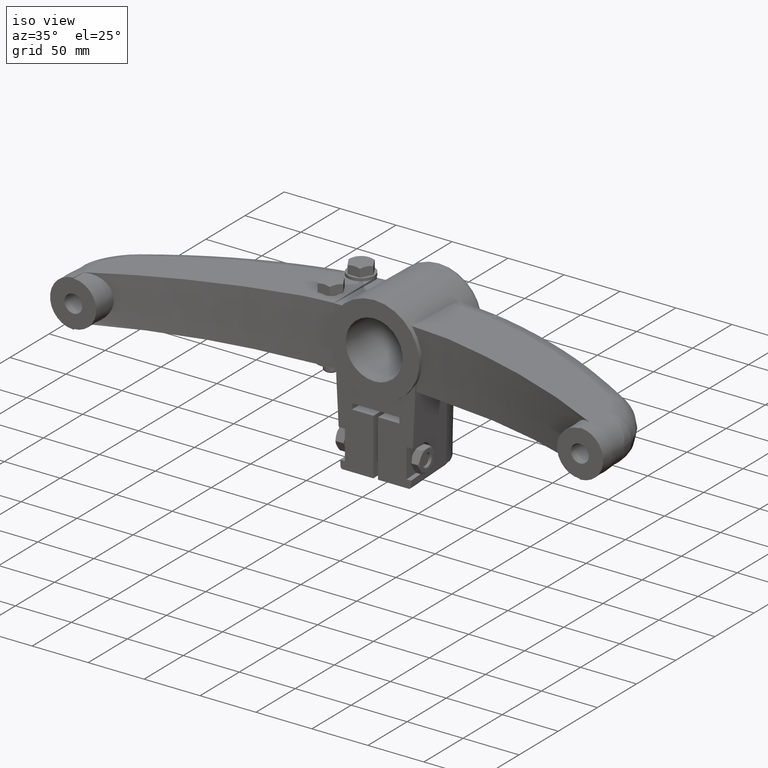
[diagram: clean part render]
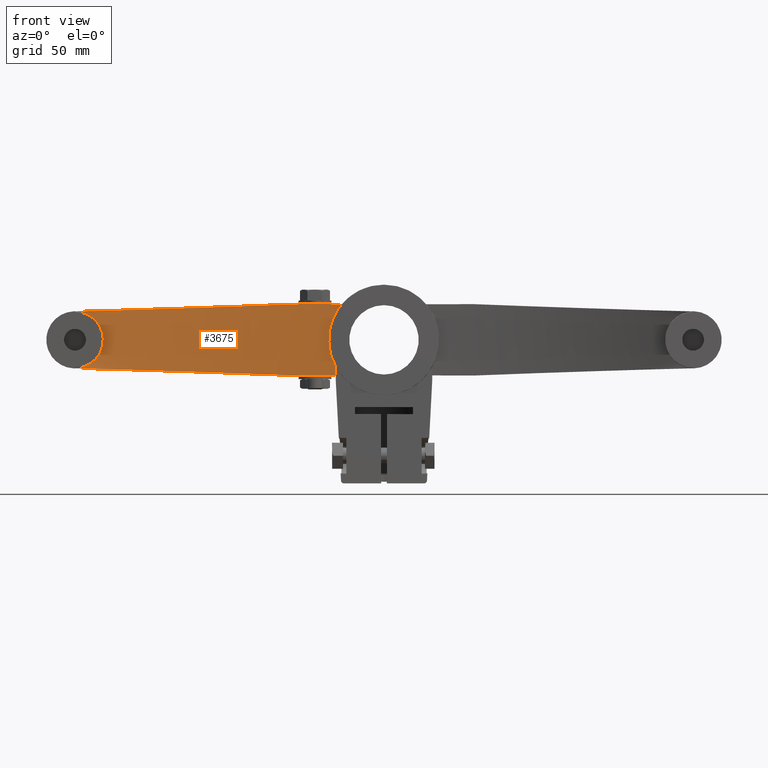
[diagram: tour spotlight — one face highlighted and labeled with its STEP entity id]
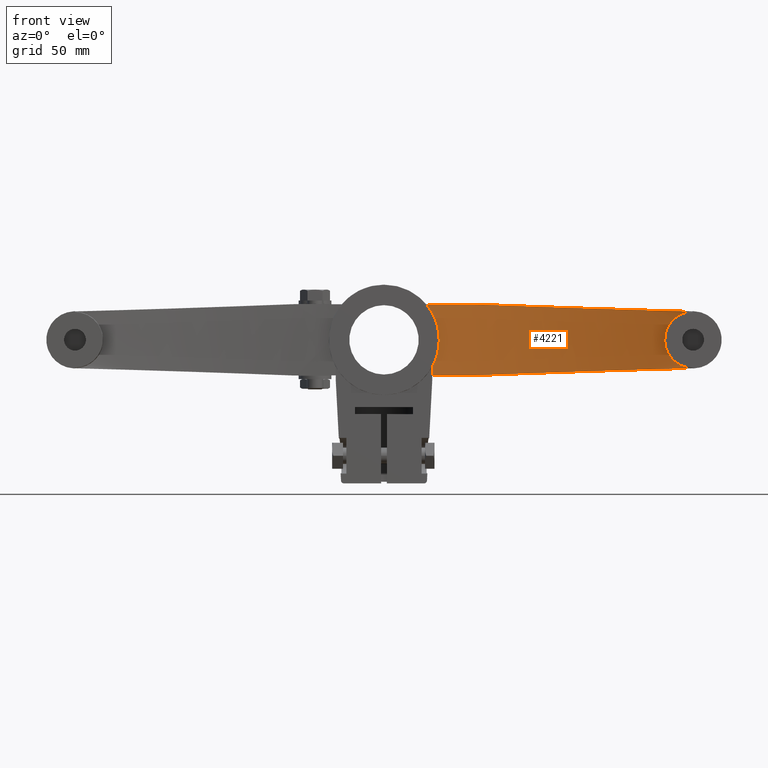
[diagram: tour spotlight — one face highlighted and labeled with its STEP entity id]
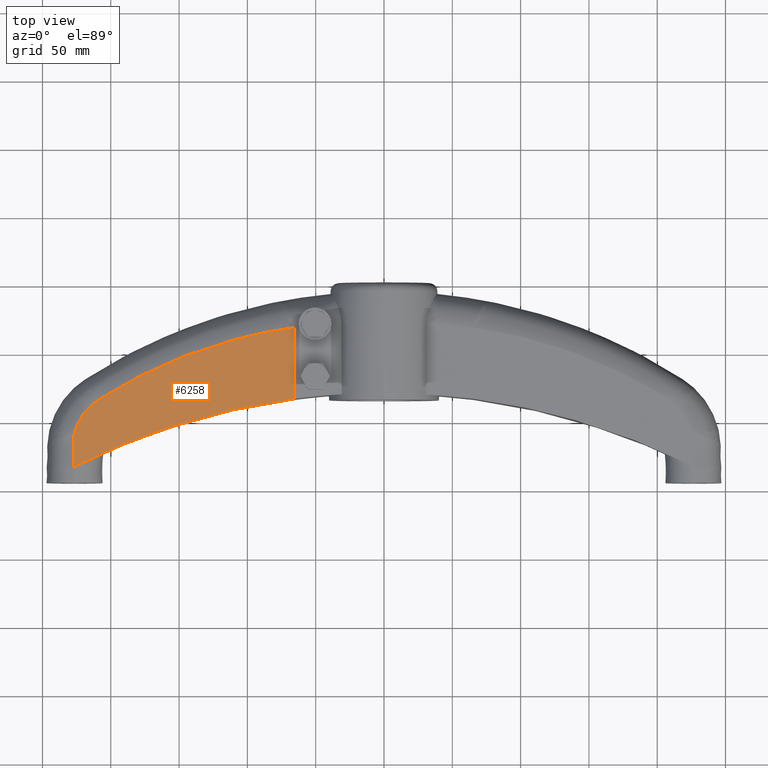
[diagram: tour spotlight — one face highlighted and labeled with its STEP entity id]
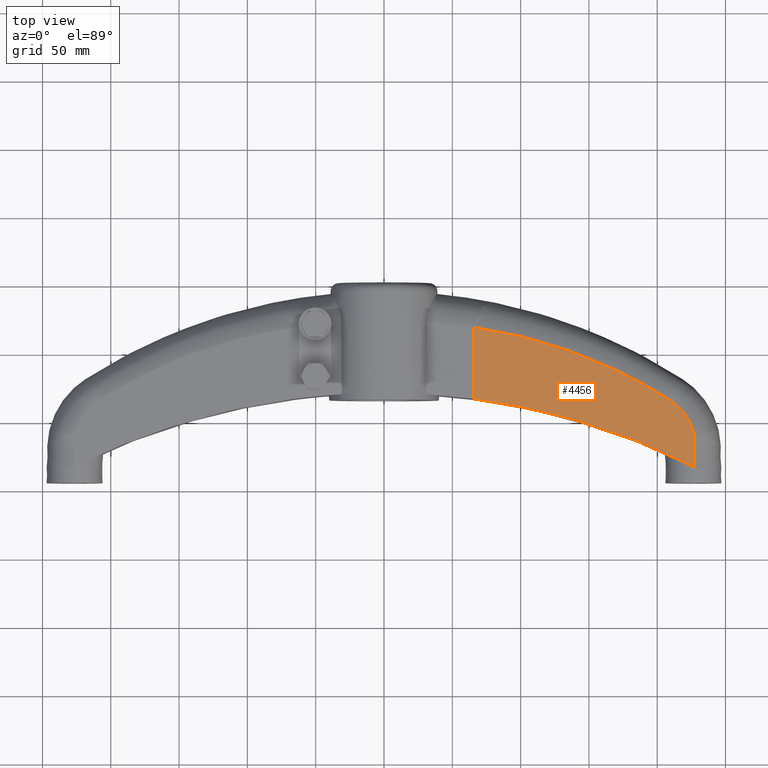
[diagram: tour spotlight — one face highlighted and labeled with its STEP entity id]
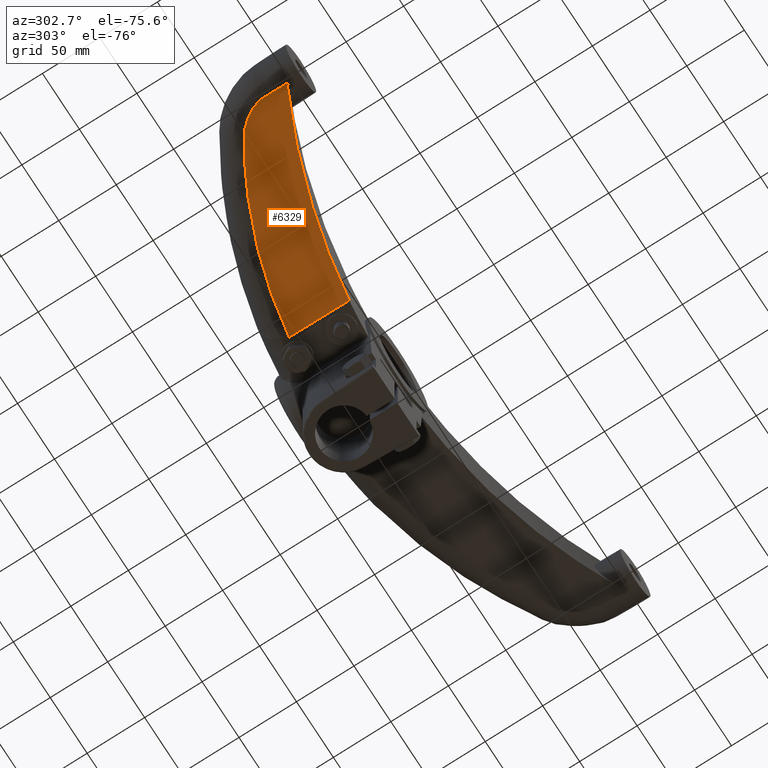
[diagram: tour spotlight — one face highlighted and labeled with its STEP entity id]
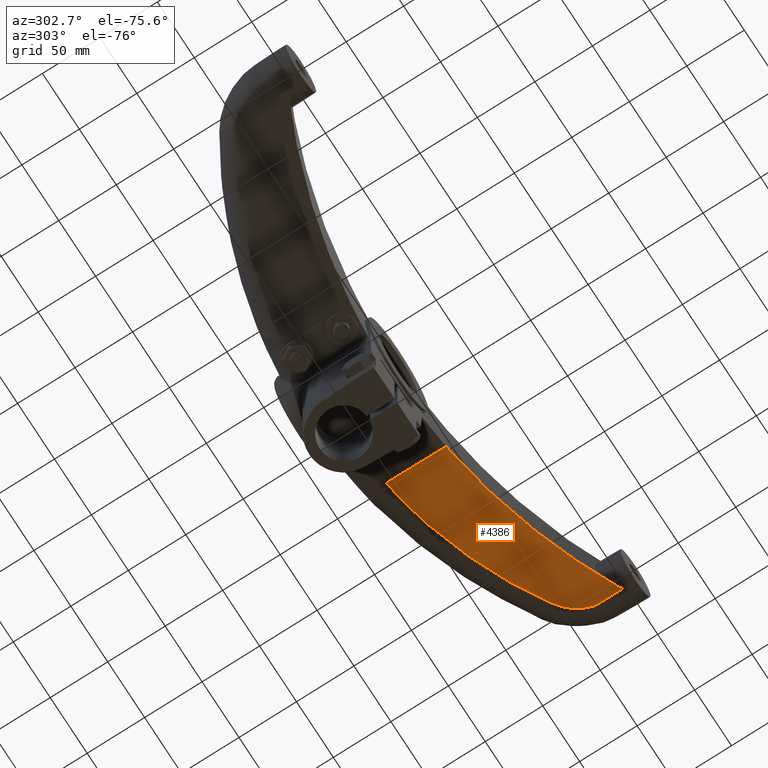
[diagram: tour spotlight — one face highlighted and labeled with its STEP entity id]
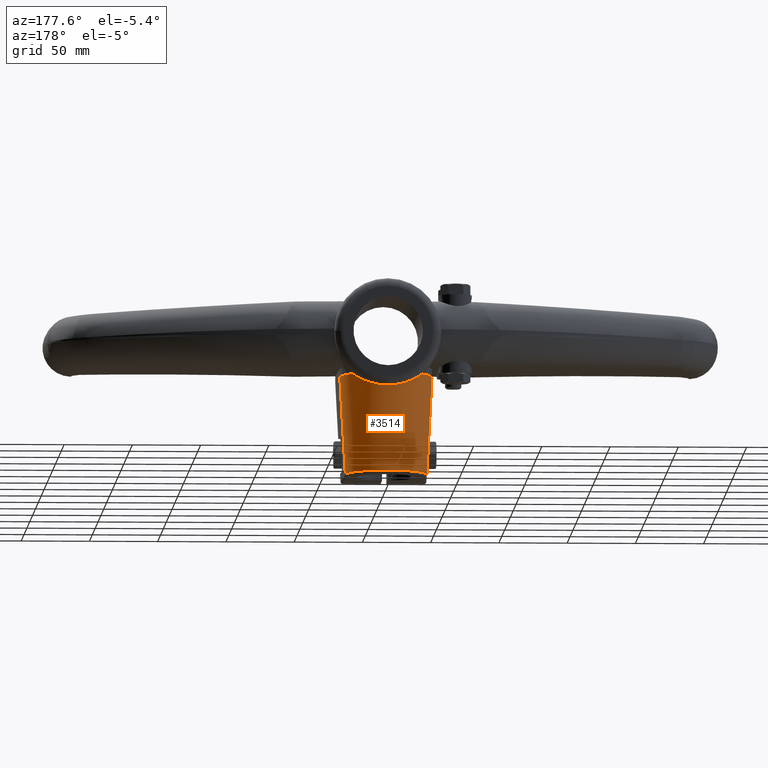
[diagram: tour spotlight — one face highlighted and labeled with its STEP entity id]
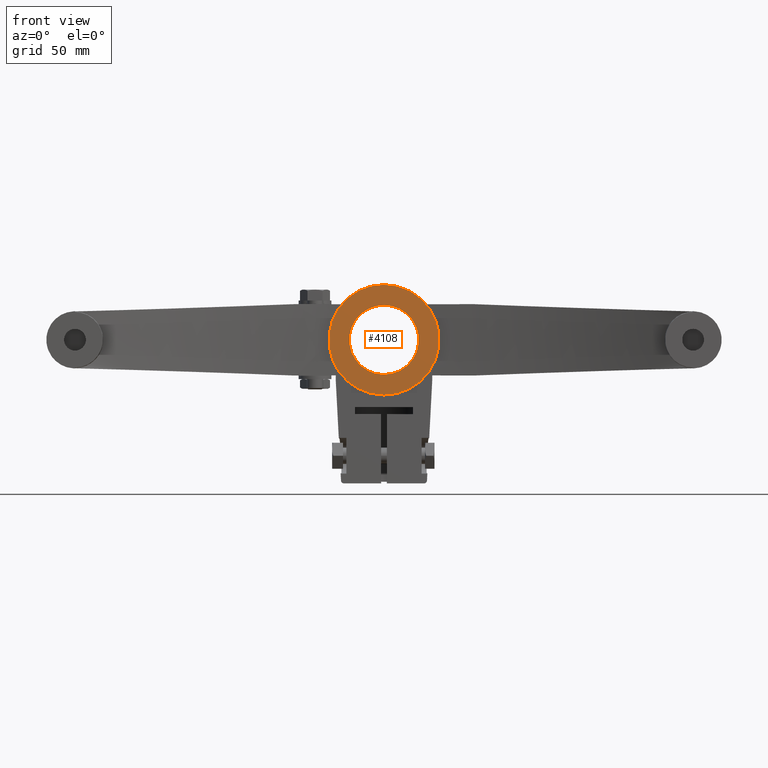
[diagram: tour spotlight — one face highlighted and labeled with its STEP entity id]
A machine part: a face-by-face anatomy tour. The part has 236 B-rep faces; the first image is the clean iso view, then the 8 largest visible faces are spotlighted one at a time (largest first), each with its STEP entity span.

Face 1 — front view, entity #3675. In plain terms, the highlighted cylindrical surface (partial cylindrical patch) has radius 505 mm, axis along (0, 0, 1).
Definition (entity closure, byte-faithful):
#242=CARTESIAN_POINT('',(-3.842607399538E1,1.185359340080E2,-2.603857779390E1));
#243=CARTESIAN_POINT('',(-3.735679000777E1,1.186175337169E2,-2.603572826927E1));
#244=CARTESIAN_POINT('',(-3.628725664828E1,1.186957266376E2,-2.603299771231E1));
#245=CARTESIAN_POINT('',(-3.521747391648E1,1.187705127644E2,-2.603038612322E1));
#255=DIRECTION('',(-4.900934396379E-14,-2.564442416710E-12,1.E0));
#256=VECTOR('',#255,6.234186211563E0);
#257=CARTESIAN_POINT('',(-3.521747391647E1,1.187705127644E2,-2.603038612321E1));
#258=LINE('',#257,#256);
#259=DIRECTION('',(-3.208994925390E-14,1.021743984244E-10,1.E0));
#260=VECTOR('',#259,2.214222061052E-1);
#261=CARTESIAN_POINT('',(-3.842607399530E1,1.185359340080E2,-2.626E1));
#262=LINE('',#261,#260);
#263=DIRECTION('',(-5.203382667076E-14,-1.818061903877E-10,-1.E0));
#264=VECTOR('',#263,1.365540036592E-1);
#265=CARTESIAN_POINT('',(-6.259513497546E1,1.161056266671E2,-2.612344599634E1));
#266=LINE('',#265,#264);
#267=DIRECTION('',(-7.967986497098E-11,5.534925497260E-12,-1.E0));
#268=VECTOR('',#267,2.464788466140E-1);
#269=CARTESIAN_POINT('',(-2.258086290362E2,6.670284817874E1,-2.057109739144E1));
#270=LINE('',#269,#268);
#271=DIRECTION('',(7.068561103779E-11,-4.612437914375E-13,-1.E0));
#272=VECTOR('',#271,2.464788466145E-1);
#273=CARTESIAN_POINT('',(-2.258086290362E2,6.670284817874E1,2.081757623806E1));
#274=LINE('',#273,#272);
#275=DIRECTION('',(9.366088800714E-12,1.406994673174E-10,-1.E0));
#276=VECTOR('',#275,1.365540036595E-1);
#277=CARTESIAN_POINT('',(-6.259513497546E1,1.161056266671E2,2.626E1));
#278=LINE('',#277,#276);
#279=DIRECTION('',(0.E0,3.914973809010E-12,1.E0));
#280=VECTOR('',#279,2.214222061032E-1);
#281=CARTESIAN_POINT('',(-3.842607399530E1,1.185359340080E2,2.603857779390E1));
#282=LINE('',#281,#280);
#283=CARTESIAN_POINT('',(-3.521747391647E1,1.187705127644E2,-1.979619991165E1));
#284=CARTESIAN_POINT('',(-3.656920167936E1,1.186760164888E2,-1.739147388119E1));
#285=CARTESIAN_POINT('',(-3.872819400629E1,1.185146873641E2,-1.242363039866E1));
#286=CARTESIAN_POINT('',(-4.043995078042E1,1.183783354464E2,-4.386345153633E0));
#287=CARTESIAN_POINT('',(-4.049553271980E1,1.183737551069E2,3.802313998751E0));
#288=CARTESIAN_POINT('',(-3.891608325026E1,1.185001127813E2,1.184094051591E1));
#289=CARTESIAN_POINT('',(-3.573320148765E1,1.187390993857E2,1.942686332367E1));
#290=CARTESIAN_POINT('',(-3.268291969914E1,1.189444424985E2,2.390837373452E1));
#291=CARTESIAN_POINT('',(-3.090458426253E1,1.190534760038E2,2.602050482915E1));
#1503=CARTESIAN_POINT('',(-3.090458426247E1,1.190534760039E2,2.602050482916E1));
#1504=CARTESIAN_POINT('',(-3.341303685920E1,1.188996774719E2,2.602587559224E1));
#1505=CARTESIAN_POINT('',(-3.592020010190E1,1.187271634499E2,2.603189991464E1));
#1506=CARTESIAN_POINT('',(-3.842607399538E1,1.185359340080E2,2.603857779390E1));
#1578=CARTESIAN_POINT('',(0.E0,-3.85E2,2.626E1));
#1579=DIRECTION('',(0.E0,0.E0,-1.E0));
#1580=DIRECTION('',(-1.239507623277E-1,9.922883696378E-1,0.E0));
#1581=AXIS2_PLACEMENT_3D('',#1578,#1579,#1580);
#1786=CARTESIAN_POINT('',(-6.259513497547E1,1.161056266671E2,2.612344599634E1));
#1787=CARTESIAN_POINT('',(-6.359813681085E1,1.159803376423E2,2.612782118550E1));
#1788=CARTESIAN_POINT('',(-6.460075298253E1,1.158520384527E2,2.613230149192E1));
#1789=CARTESIAN_POINT('',(-6.560298349159E1,1.157207291066E2,2.613688691533E1));
#1832=CARTESIAN_POINT('',(-6.560298349158E1,1.157207291066E2,2.613688691533E1));
#1833=CARTESIAN_POINT('',(-9.367138968929E1,1.120432876080E2,2.503328385582E1));
#1834=CARTESIAN_POINT('',(-1.484127713783E2,1.001043311665E2,2.304756783733E1));
#1835=CARTESIAN_POINT('',(-2.004758100753E2,7.936685758726E1,2.148697250442E1));
#1836=CARTESIAN_POINT('',(-2.258086290362E2,6.670284817874E1,2.081757623806E1));
#1873=CARTESIAN_POINT('',(-2.258086290362E2,6.670284817874E1,2.057109739144E1));
#1874=CARTESIAN_POINT('',(-2.241439423319E2,6.753503381581E1,2.055071835941E1));
#1875=CARTESIAN_POINT('',(-2.209457191385E2,6.911123864988E1,2.011931665549E1));
#1876=CARTESIAN_POINT('',(-2.164302060179E2,7.127876425219E1,1.838523481828E1));
#1877=CARTESIAN_POINT('',(-2.125514560860E2,7.309586117723E1,1.573837355223E1));
#1878=CARTESIAN_POINT('',(-2.094333067248E2,7.452756740930E1,1.238282293291E1));
#1879=CARTESIAN_POINT('',(-2.071704140947E2,7.555041970426E1,8.521084101921E0));
#1880=CARTESIAN_POINT('',(-2.058018433181E2,7.616253209249E1,4.338027831032E0));
#1881=CARTESIAN_POINT('',(-2.053444114709E2,7.636603296070E1,
-6.078201734505E-5));
#1882=CARTESIAN_POINT('',(-2.058018687468E2,7.616252076641E1,
-4.338147202509E0));
#1883=CARTESIAN_POINT('',(-2.071704649024E2,7.555039688244E1,
-8.521196852217E0));
#1884=CARTESIAN_POINT('',(-2.094333811914E2,7.452753354837E1,
-1.238292405193E1));
#1885=CARTESIAN_POINT('',(-2.125515561064E2,7.309581477712E1,
-1.573845827757E1));
#1886=CARTESIAN_POINT('',(-2.164303150386E2,7.127871274452E1,
-1.838529519551E1));
#1887=CARTESIAN_POINT('',(-2.209458814550E2,6.911115958895E1,
-2.011935556301E1));
#1888=CARTESIAN_POINT('',(-2.241440092267E2,6.753500037475E1,
-2.055071917834E1));
#1889=CARTESIAN_POINT('',(-2.258086290362E2,6.670284817874E1,
-2.057109739144E1));
#1943=CARTESIAN_POINT('',(-2.258086290362E2,6.670284817874E1,
-2.081757623806E1));
#1944=CARTESIAN_POINT('',(-2.004758100753E2,7.936685758726E1,
-2.148697250442E1));
#1945=CARTESIAN_POINT('',(-1.484127713784E2,1.001043311665E2,
-2.304756783733E1));
#1946=CARTESIAN_POINT('',(-9.367138968931E1,1.120432876080E2,
-2.503328385582E1));
#1947=CARTESIAN_POINT('',(-6.560298349160E1,1.157207291066E2,
-2.613688691533E1));
#2165=CARTESIAN_POINT('',(-6.560298349159E1,1.157207291066E2,
-2.613688691533E1));
#2166=CARTESIAN_POINT('',(-6.460075298254E1,1.158520384527E2,
-2.613230149192E1));
#2167=CARTESIAN_POINT('',(-6.359813681085E1,1.159803376423E2,
-2.612782118550E1));
#2168=CARTESIAN_POINT('',(-6.259513497547E1,1.161056266671E2,
-2.612344599634E1));
#2193=CARTESIAN_POINT('',(0.E0,-3.85E2,-2.626E1));
#2194=DIRECTION('',(0.E0,0.E0,1.E0));
#2195=DIRECTION('',(-7.609123563442E-2,9.971008594218E-1,0.E0));
#2196=AXIS2_PLACEMENT_3D('',#2193,#2194,#2195);
#2828=VERTEX_POINT('',#1873);
#2829=VERTEX_POINT('',#1889);
#2834=CARTESIAN_POINT('',(-3.842607399530E1,1.185359340080E2,2.626E1));
#2835=VERTEX_POINT('',#2834);
#2836=CARTESIAN_POINT('',(-6.259513497548E1,1.161056266671E2,2.626E1));
#2837=VERTEX_POINT('',#2836);
#2850=CARTESIAN_POINT('',(-6.259513497546E1,1.161056266671E2,-2.626E1));
#2851=VERTEX_POINT('',#2850);
#2852=CARTESIAN_POINT('',(-3.842607399538E1,1.185359340080E2,-2.626E1));
#2853=VERTEX_POINT('',#2852);
#2864=CARTESIAN_POINT('',(-6.259513497546E1,1.161056266671E2,
-2.612344599634E1));
#2865=VERTEX_POINT('',#2864);
#2866=VERTEX_POINT('',#2165);
#2868=VERTEX_POINT('',#1943);
#2889=CARTESIAN_POINT('',(-2.258086290362E2,6.670284817874E1,2.081757623806E1));
#2890=VERTEX_POINT('',#2889);
#2891=VERTEX_POINT('',#1832);
#2893=VERTEX_POINT('',#1786);
#2900=CARTESIAN_POINT('',(-3.521747391647E1,1.187705127644E2,
-2.603038612321E1));
#2901=CARTESIAN_POINT('',(-3.521747391647E1,1.187705127644E2,
-1.979619991165E1));
#2902=VERTEX_POINT('',#2900);
#2903=VERTEX_POINT('',#2901);
#2904=VERTEX_POINT('',#291);
#2905=VERTEX_POINT('',#1506);
#2906=CARTESIAN_POINT('',(-3.842607399530E1,1.185359340080E2,
-2.603857779390E1));
#2907=VERTEX_POINT('',#2906);
#3636=CARTESIAN_POINT('',(0.E0,-3.85E2,-2.73104E1));
#3637=DIRECTION('',(0.E0,0.E0,1.E0));
#3638=DIRECTION('',(1.E0,0.E0,0.E0));
#3639=AXIS2_PLACEMENT_3D('',#3636,#3637,#3638);
#3640=CYLINDRICAL_SURFACE('',#3639,5.05E2);
#3641=ORIENTED_EDGE('',*,*,#3624,.F.);
#3642=ORIENTED_EDGE('',*,*,#3613,.F.);
#3644=ORIENTED_EDGE('',*,*,#3643,.F.);
#3646=ORIENTED_EDGE('',*,*,#3645,.T.);
#3648=ORIENTED_EDGE('',*,*,#3647,.F.);
#3650=ORIENTED_EDGE('',*,*,#3649,.F.);
#3652=ORIENTED_EDGE('',*,*,#3651,.F.);
#3654=ORIENTED_EDGE('',*,*,#3653,.F.);
#3656=ORIENTED_EDGE('',*,*,#3655,.F.);
#3658=ORIENTED_EDGE('',*,*,#3657,.F.);
#3660=ORIENTED_EDGE('',*,*,#3659,.F.);
#3662=ORIENTED_EDGE('',*,*,#3661,.F.);
#3664=ORIENTED_EDGE('',*,*,#3663,.F.);
#3666=ORIENTED_EDGE('',*,*,#3665,.T.);
#3668=ORIENTED_EDGE('',*,*,#3667,.F.);
#3670=ORIENTED_EDGE('',*,*,#3669,.F.);
#3672=ORIENTED_EDGE('',*,*,#3671,.F.);
#3673=EDGE_LOOP('',(#3641,#3642,#3644,#3646,#3648,#3650,#3652,#3654,#3656,#3658,
#3660,#3662,#3664,#3666,#3668,#3670,#3672));
#3674=FACE_OUTER_BOUND('',#3673,.F.);
#246=B_SPLINE_CURVE_WITH_KNOTS('',3,(#242,#243,#244,#245),.UNSPECIFIED.,.F.,.F.,
(4,4),(0.E0,1.E0),.UNSPECIFIED.);
#292=B_SPLINE_CURVE_WITH_KNOTS('',3,(#283,#284,#285,#286,#287,#288,#289,#290,
#291),.UNSPECIFIED.,.F.,.F.,(4,1,1,1,1,1,4),(0.E0,1.666666666667E-1,
3.333333333333E-1,5.E-1,6.666666666667E-1,8.333333333333E-1,1.E0),
.UNSPECIFIED.);
#1507=B_SPLINE_CURVE_WITH_KNOTS('',3,(#1503,#1504,#1505,#1506),.UNSPECIFIED.,
.F.,.F.,(4,4),(0.E0,1.E0),.UNSPECIFIED.);
#1582=CIRCLE('',#1581,5.05E2);
#1790=B_SPLINE_CURVE_WITH_KNOTS('',3,(#1786,#1787,#1788,#1789),.UNSPECIFIED.,
.F.,.F.,(4,4),(0.E0,1.E0),.UNSPECIFIED.);
#1837=B_SPLINE_CURVE_WITH_KNOTS('',3,(#1832,#1833,#1834,#1835,#1836),
.UNSPECIFIED.,.F.,.F.,(4,1,4),(0.E0,5.E-1,1.E0),.UNSPECIFIED.);
#1890=B_SPLINE_CURVE_WITH_KNOTS('',3,(#1873,#1874,#1875,#1876,#1877,#1878,#1879,
#1880,#1881,#1882,#1883,#1884,#1885,#1886,#1887,#1888,#1889),.UNSPECIFIED.,.F.,
.F.,(4,1,1,1,1,1,1,1,1,1,1,1,1,1,4),(0.E0,7.142857142857E-2,1.428571428571E-1,
2.142857142857E-1,2.857142857143E-1,3.571428571429E-1,4.285714285714E-1,5.E-1,
5.714285714286E-1,6.428571428571E-1,7.142857142857E-1,7.857142857143E-1,
8.571428571429E-1,9.285714285714E-1,1.E0),.UNSPECIFIED.);
#1948=B_SPLINE_CURVE_WITH_KNOTS('',3,(#1943,#1944,#1945,#1946,#1947),
.UNSPECIFIED.,.F.,.F.,(4,1,4),(0.E0,5.E-1,1.E0),.UNSPECIFIED.);
#2169=B_SPLINE_CURVE_WITH_KNOTS('',3,(#2165,#2166,#2167,#2168),.UNSPECIFIED.,
.F.,.F.,(4,4),(0.E0,1.E0),.UNSPECIFIED.);
#2197=CIRCLE('',#2196,5.05E2);
#3613=EDGE_CURVE('',#2907,#2902,#246,.T.);
#3624=EDGE_CURVE('',#2902,#2903,#258,.T.);
#3643=EDGE_CURVE('',#2853,#2907,#262,.T.);
#3645=EDGE_CURVE('',#2853,#2851,#2197,.T.);
#3647=EDGE_CURVE('',#2865,#2851,#266,.T.);
#3649=EDGE_CURVE('',#2866,#2865,#2169,.T.);
#3651=EDGE_CURVE('',#2868,#2866,#1948,.T.);
#3653=EDGE_CURVE('',#2829,#2868,#270,.T.);
#3655=EDGE_CURVE('',#2828,#2829,#1890,.T.);
#3657=EDGE_CURVE('',#2890,#2828,#274,.T.);
#3659=EDGE_CURVE('',#2891,#2890,#1837,.T.);
#3661=EDGE_CURVE('',#2893,#2891,#1790,.T.);
#3663=EDGE_CURVE('',#2837,#2893,#278,.T.);
#3665=EDGE_CURVE('',#2837,#2835,#1582,.T.);
#3667=EDGE_CURVE('',#2905,#2835,#282,.T.);
#3669=EDGE_CURVE('',#2904,#2905,#1507,.T.);
#3671=EDGE_CURVE('',#2903,#2904,#292,.T.);
#3675=ADVANCED_FACE('',(#3674),#3640,.F.);

Face 2 — front view, entity #4221. In plain terms, the highlighted cylindrical surface (partial cylindrical patch) has radius 505 mm, axis along (0, 0, -1).
Definition (entity closure, byte-faithful):
#63=CARTESIAN_POINT('',(3.521747391648E1,1.187705127644E2,-2.603038612321E1));
#64=CARTESIAN_POINT('',(4.537676594338E1,1.180602992984E2,-2.605518732395E1));
#65=CARTESIAN_POINT('',(5.550526890958E1,1.170437025017E2,-2.609068766635E1));
#66=CARTESIAN_POINT('',(6.560298349160E1,1.157207291066E2,-2.613688691533E1));
#641=DIRECTION('',(-4.217083085258E-14,2.470982737524E-12,-1.E0));
#642=VECTOR('',#641,6.234186211561E0);
#643=CARTESIAN_POINT('',(3.521747391647E1,1.187705127644E2,-1.979619991165E1));
#644=LINE('',#643,#642);
#645=CARTESIAN_POINT('',(3.090458426253E1,1.190534760038E2,2.602050482915E1));
#646=CARTESIAN_POINT('',(3.268311761657E1,1.189444303638E2,2.390813866775E1));
#647=CARTESIAN_POINT('',(3.573355129739E1,1.187390741927E2,1.942621932904E1));
#648=CARTESIAN_POINT('',(3.891614728722E1,1.185001074405E2,1.184063522474E1));
#649=CARTESIAN_POINT('',(4.049554130217E1,1.183737544925E2,3.802168347626E0));
#650=CARTESIAN_POINT('',(4.043993095993E1,1.183783369688E2,-4.386293696704E0));
#651=CARTESIAN_POINT('',(3.872831691650E1,1.185146777235E2,-1.242323121730E1));
#652=CARTESIAN_POINT('',(3.656929036852E1,1.186760102887E2,-1.739131610302E1));
#653=CARTESIAN_POINT('',(3.521747391647E1,1.187705127644E2,-1.979619991165E1));
#655=DIRECTION('',(7.875737738463E-11,7.379900662689E-12,1.E0));
#656=VECTOR('',#655,2.464788466249E-1);
#657=CARTESIAN_POINT('',(2.258086290362E2,6.670284817874E1,2.057109739143E1));
#658=LINE('',#657,#656);
#659=DIRECTION('',(-6.976312345184E-11,-2.306218957086E-12,1.E0));
#660=VECTOR('',#659,2.464788466254E-1);
#661=CARTESIAN_POINT('',(2.258086290362E2,6.670284817874E1,-2.081757623806E1));
#662=LINE('',#661,#660);
#663=CARTESIAN_POINT('',(3.090458426253E1,1.190534760038E2,2.602050482915E1));
#675=CARTESIAN_POINT('',(6.560298349159E1,1.157207291066E2,2.613688691533E1));
#676=CARTESIAN_POINT('',(5.407526039848E1,1.172310580860E2,2.608414506518E1));
#677=CARTESIAN_POINT('',(4.250912762962E1,1.183419769162E2,2.604535092479E1));
#678=CARTESIAN_POINT('',(3.090458426247E1,1.190534760039E2,2.602050482916E1));
#767=CARTESIAN_POINT('',(6.560298349158E1,1.157207291066E2,-2.613688691533E1));
#768=CARTESIAN_POINT('',(9.367138968929E1,1.120432876080E2,-2.503328385582E1));
#769=CARTESIAN_POINT('',(1.484127713783E2,1.001043311665E2,-2.304756783733E1));
#770=CARTESIAN_POINT('',(2.004758100753E2,7.936685758726E1,-2.148697250442E1));
#771=CARTESIAN_POINT('',(2.258086290362E2,6.670284817874E1,-2.081757623806E1));
#808=CARTESIAN_POINT('',(2.258086290362E2,6.670284817874E1,-2.057109739143E1));
#809=CARTESIAN_POINT('',(2.241438929367E2,6.753505850875E1,-2.055071775471E1));
#810=CARTESIAN_POINT('',(2.209455838799E2,6.911130506329E1,-2.011929478077E1));
#811=CARTESIAN_POINT('',(2.164299368849E2,7.127889220699E1,-1.838510456580E1));
#812=CARTESIAN_POINT('',(2.125511814908E2,7.309598842895E1,-1.573813932766E1));
#813=CARTESIAN_POINT('',(2.094331008191E2,7.452766103430E1,-1.238254077144E1));
#814=CARTESIAN_POINT('',(2.071703102566E2,7.555046625286E1,-8.520834680317E0));
#815=CARTESIAN_POINT('',(2.058018247005E2,7.616254035961E1,-4.337890155492E0));
#816=CARTESIAN_POINT('',(2.053444226321E2,7.636602800206E1,4.013193464281E-5));
#817=CARTESIAN_POINT('',(2.058018414924E2,7.616253288045E1,4.337968994872E0));
#818=CARTESIAN_POINT('',(2.071703438126E2,7.555045117998E1,8.520909138544E0));
#819=CARTESIAN_POINT('',(2.094331499792E2,7.452763868118E1,1.238260755053E1));
#820=CARTESIAN_POINT('',(2.125512476230E2,7.309595774839E1,1.573819531079E1));
#821=CARTESIAN_POINT('',(2.164300086442E2,7.127885830711E1,1.838514437956E1));
#822=CARTESIAN_POINT('',(2.209456921550E2,6.911125232788E1,2.011932079956E1));
#823=CARTESIAN_POINT('',(2.241439375791E2,6.753503619174E1,2.055071830122E1));
#824=CARTESIAN_POINT('',(2.258086290362E2,6.670284817874E1,2.057109739143E1));
#878=CARTESIAN_POINT('',(2.258086290362E2,6.670284817874E1,2.081757623806E1));
#879=CARTESIAN_POINT('',(2.004758100753E2,7.936685758726E1,2.148697250442E1));
#880=CARTESIAN_POINT('',(1.484127713784E2,1.001043311665E2,2.304756783733E1));
#881=CARTESIAN_POINT('',(9.367138968931E1,1.120432876080E2,2.503328385582E1));
#882=CARTESIAN_POINT('',(6.560298349160E1,1.157207291066E2,2.613688691533E1));
#2961=VERTEX_POINT('',#808);
#2962=VERTEX_POINT('',#824);
#2963=VERTEX_POINT('',#663);
#2965=VERTEX_POINT('',#675);
#2969=VERTEX_POINT('',#878);
#2990=CARTESIAN_POINT('',(2.258086290362E2,6.670284817874E1,-2.081757623806E1));
#2991=VERTEX_POINT('',#2990);
#2992=VERTEX_POINT('',#767);
#2994=CARTESIAN_POINT('',(3.521747391647E1,1.187705127644E2,-2.603038612321E1));
#2996=VERTEX_POINT('',#2994);
#3003=CARTESIAN_POINT('',(3.521747391647E1,1.187705127644E2,-1.979619991165E1));
#3004=VERTEX_POINT('',#3003);
#4199=CARTESIAN_POINT('',(0.E0,-3.85E2,2.718236239194E1));
#4200=DIRECTION('',(0.E0,0.E0,-1.E0));
#4201=DIRECTION('',(-1.E0,0.E0,0.E0));
#4202=AXIS2_PLACEMENT_3D('',#4199,#4200,#4201);
#4203=CYLINDRICAL_SURFACE('',#4202,5.05E2);
#4204=ORIENTED_EDGE('',*,*,#3454,.F.);
#4205=ORIENTED_EDGE('',*,*,#4193,.F.);
#4207=ORIENTED_EDGE('',*,*,#4206,.F.);
#4209=ORIENTED_EDGE('',*,*,#4208,.F.);
#4211=ORIENTED_EDGE('',*,*,#4210,.F.);
#4213=ORIENTED_EDGE('',*,*,#4212,.F.);
#4215=ORIENTED_EDGE('',*,*,#4214,.F.);
#4217=ORIENTED_EDGE('',*,*,#4216,.F.);
#4218=ORIENTED_EDGE('',*,*,#3430,.F.);
#4219=EDGE_LOOP('',(#4204,#4205,#4207,#4209,#4211,#4213,#4215,#4217,#4218));
#4220=FACE_OUTER_BOUND('',#4219,.F.);
#67=B_SPLINE_CURVE_WITH_KNOTS('',3,(#63,#64,#65,#66),.UNSPECIFIED.,.F.,.F.,(4,
4),(0.E0,1.E0),.UNSPECIFIED.);
#654=B_SPLINE_CURVE_WITH_KNOTS('',3,(#645,#646,#647,#648,#649,#650,#651,#652,
#653),.UNSPECIFIED.,.F.,.F.,(4,1,1,1,1,1,4),(0.E0,1.666666666667E-1,
3.333333333333E-1,5.E-1,6.666666666667E-1,8.333333333333E-1,1.E0),
.UNSPECIFIED.);
#679=B_SPLINE_CURVE_WITH_KNOTS('',3,(#675,#676,#677,#678),.UNSPECIFIED.,.F.,.F.,
(4,4),(0.E0,1.E0),.UNSPECIFIED.);
#772=B_SPLINE_CURVE_WITH_KNOTS('',3,(#767,#768,#769,#770,#771),.UNSPECIFIED.,
.F.,.F.,(4,1,4),(0.E0,5.E-1,1.E0),.UNSPECIFIED.);
#825=B_SPLINE_CURVE_WITH_KNOTS('',3,(#808,#809,#810,#811,#812,#813,#814,#815,
#816,#817,#818,#819,#820,#821,#822,#823,#824),.UNSPECIFIED.,.F.,.F.,(4,1,1,1,1,
1,1,1,1,1,1,1,1,1,4),(0.E0,7.142857142857E-2,1.428571428571E-1,
2.142857142857E-1,2.857142857143E-1,3.571428571429E-1,4.285714285714E-1,5.E-1,
5.714285714286E-1,6.428571428571E-1,7.142857142857E-1,7.857142857143E-1,
8.571428571429E-1,9.285714285714E-1,1.E0),.UNSPECIFIED.);
#883=B_SPLINE_CURVE_WITH_KNOTS('',3,(#878,#879,#880,#881,#882),.UNSPECIFIED.,
.F.,.F.,(4,1,4),(0.E0,5.E-1,1.E0),.UNSPECIFIED.);
#3430=EDGE_CURVE('',#2996,#2992,#67,.T.);
#3454=EDGE_CURVE('',#3004,#2996,#644,.T.);
#4193=EDGE_CURVE('',#2963,#3004,#654,.T.);
#4206=EDGE_CURVE('',#2965,#2963,#679,.T.);
#4208=EDGE_CURVE('',#2969,#2965,#883,.T.);
#4210=EDGE_CURVE('',#2962,#2969,#658,.T.);
#4212=EDGE_CURVE('',#2961,#2962,#825,.T.);
#4214=EDGE_CURVE('',#2991,#2961,#662,.T.);
#4216=EDGE_CURVE('',#2992,#2991,#772,.T.);
#4221=ADVANCED_FACE('',(#4220),#4203,.F.);

Face 3 — top view, entity #6258. In plain terms, the highlighted planar face has unit normal (-0.0438, 0.0349, 0.9984).
Definition (entity closure, byte-faithful):
#1791=DIRECTION('',(7.656394292756E-4,9.993905340961E-1,-3.489948646217E-2));
#1792=VECTOR('',#1791,5.193466243464E1);
#1793=CARTESIAN_POINT('',(-6.560298349158E1,1.157207291066E2,2.613688691533E1));
#1794=LINE('',#1793,#1792);
#1825=CARTESIAN_POINT('',(-6.560508256716E1,1.679069407090E2,2.431265706786E1));
#1826=CARTESIAN_POINT('',(-6.559586056099E1,1.678766432778E2,2.431412092367E1));
#1827=CARTESIAN_POINT('',(-6.558036808507E1,1.678152866984E2,2.431694567585E1));
#1828=CARTESIAN_POINT('',(-6.556622574049E1,1.677199097067E2,2.432090034859E1));
#1829=CARTESIAN_POINT('',(-6.556319558617E1,1.676559603594E2,2.432326867662E1));
#1830=CARTESIAN_POINT('',(-6.556322026627E1,1.676237391352E2,2.432439386677E1));
#1832=CARTESIAN_POINT('',(-6.560298349158E1,1.157207291066E2,2.613688691533E1));
#1833=CARTESIAN_POINT('',(-9.367138968929E1,1.120432876080E2,2.503328385582E1));
#1834=CARTESIAN_POINT('',(-1.484127713783E2,1.001043311665E2,2.304756783733E1));
#1835=CARTESIAN_POINT('',(-2.004758100753E2,7.936685758726E1,2.148697250442E1));
#1836=CARTESIAN_POINT('',(-2.258086290362E2,6.670284817874E1,2.081757623806E1));
#1838=CARTESIAN_POINT('',(-2.271163879991E2,8.947427717766E1,1.996420668904E1));
#1839=CARTESIAN_POINT('',(-2.264789746841E2,9.219747113182E1,1.989700022358E1));
#1840=CARTESIAN_POINT('',(-2.247146950070E2,9.739644538909E1,1.979272141837E1));
#1841=CARTESIAN_POINT('',(-2.204994365767E2,1.046242957272E2,1.972511752470E1));
#1842=CARTESIAN_POINT('',(-2.168443314656E2,1.087191955077E2,1.974243441848E1));
#1843=CARTESIAN_POINT('',(-2.147887990553E2,1.106143335990E2,1.976642468663E1));
#1845=CARTESIAN_POINT('',(-2.147887990552E2,1.106143335990E2,1.976642468663E1));
#1846=CARTESIAN_POINT('',(-2.142097669572E2,1.111461071280E2,1.977325519086E1));
#1847=CARTESIAN_POINT('',(-2.130232775580E2,1.121742727425E2,1.978941745378E1));
#1848=CARTESIAN_POINT('',(-2.111536480431E2,1.136139215337E2,1.982109312904E1));
#1849=CARTESIAN_POINT('',(-2.098565377023E2,1.144981982402E2,1.984730806494E1));
#1850=CARTESIAN_POINT('',(-2.091945346674E2,1.149220505603E2,1.986155314529E1));
#1852=CARTESIAN_POINT('',(-2.091945346674E2,1.149220505603E2,1.986155314529E1));
#1853=CARTESIAN_POINT('',(-2.091048871899E2,1.149794445862E2,1.986348231308E1));
#1854=CARTESIAN_POINT('',(-2.090152290155E2,1.150368293518E2,1.986515599966E1));
#1855=CARTESIAN_POINT('',(-2.089255815380E2,1.150942233777E2,1.986708516746E1));
#1857=CARTESIAN_POINT('',(-2.089255815380E2,1.150942233777E2,1.986708516746E1));
#1858=CARTESIAN_POINT('',(-1.980522365802E2,1.220475199992E2,2.010135453668E1));
#1859=CARTESIAN_POINT('',(-1.757176299903E2,1.346968730202E2,2.063983945585E1));
#1860=CARTESIAN_POINT('',(-1.402684039126E2,1.499858450890E2,2.166149421004E1));
#1861=CARTESIAN_POINT('',(-1.034224617610E2,1.613296849022E2,2.288245989294E1));
#1862=CARTESIAN_POINT('',(-7.832219530522E1,1.661637987845E2,2.381533221987E1));
#1863=CARTESIAN_POINT('',(-6.560508256716E1,1.679069407090E2,2.431265706786E1));
#1869=DIRECTION('',(3.488004543426E-2,9.988338164429E-1,-3.338247385536E-2));
#1870=VECTOR('',#1869,9.239256456328E-1);
#1871=CARTESIAN_POINT('',(-2.258408556047E2,6.578E1,2.084841916177E1));
#1872=LINE('',#1871,#1870);
#2038=CARTESIAN_POINT('',(-2.271163879991E2,8.947427717766E1,1.996420668904E1));
#2040=DIRECTION('',(-1.530541934933E-3,-9.993908270804E-1,3.486591729750E-2));
#2041=VECTOR('',#2040,2.370871988778E1);
#2042=CARTESIAN_POINT('',(-2.271163879991E2,8.947427717766E1,1.996420668904E1));
#2043=LINE('',#2042,#2041);
#2108=DIRECTION('',(9.990378747895E-1,4.329004464557E-13,4.385572637702E-2));
#2109=VECTOR('',#2108,1.313082934568E0);
#2110=CARTESIAN_POINT('',(-2.271526751891E2,6.578E1,2.079083295588E1));
#2111=LINE('',#2110,#2109);
#2879=VERTEX_POINT('',#2038);
#2880=CARTESIAN_POINT('',(-2.271526751891E2,6.578E1,2.079083295588E1));
#2881=VERTEX_POINT('',#2880);
#2882=VERTEX_POINT('',#1825);
#2883=VERTEX_POINT('',#1830);
#2884=VERTEX_POINT('',#1857);
#2885=VERTEX_POINT('',#1852);
#2886=VERTEX_POINT('',#1845);
#2887=CARTESIAN_POINT('',(-2.258408556047E2,6.578E1,2.084841916177E1));
#2888=VERTEX_POINT('',#2887);
#2889=CARTESIAN_POINT('',(-2.258086290362E2,6.670284817874E1,2.081757623806E1));
#2890=VERTEX_POINT('',#2889);
#2891=VERTEX_POINT('',#1832);
#6234=CARTESIAN_POINT('',(-1.463378683826E2,1.168434703527E2,2.255354528281E1));
#6235=DIRECTION('',(-4.382901065444E-2,3.489949670250E-2,9.984292879092E-1));
#6236=DIRECTION('',(1.530542778277E-3,9.993908270191E-1,-3.486591901688E-2));
#6237=AXIS2_PLACEMENT_3D('',#6234,#6235,#6236);
#6238=PLANE('',#6237);
#6239=ORIENTED_EDGE('',*,*,#6224,.T.);
#6240=ORIENTED_EDGE('',*,*,#6175,.F.);
#6241=ORIENTED_EDGE('',*,*,#3659,.T.);
#6243=ORIENTED_EDGE('',*,*,#6242,.F.);
#6245=ORIENTED_EDGE('',*,*,#6244,.F.);
#6247=ORIENTED_EDGE('',*,*,#6246,.F.);
#6249=ORIENTED_EDGE('',*,*,#6248,.T.);
#6251=ORIENTED_EDGE('',*,*,#6250,.T.);
#6253=ORIENTED_EDGE('',*,*,#6252,.T.);
#6255=ORIENTED_EDGE('',*,*,#6254,.T.);
#6256=EDGE_LOOP('',(#6239,#6240,#6241,#6243,#6245,#6247,#6249,#6251,#6253,
#6255));
#6257=FACE_OUTER_BOUND('',#6256,.F.);
#1831=B_SPLINE_CURVE_WITH_KNOTS('',3,(#1825,#1826,#1827,#1828,#1829,#1830),
.UNSPECIFIED.,.F.,.F.,(4,1,1,4),(0.E0,3.333333333333E-1,6.666666666667E-1,1.E0),
.UNSPECIFIED.);
#1837=B_SPLINE_CURVE_WITH_KNOTS('',3,(#1832,#1833,#1834,#1835,#1836),
.UNSPECIFIED.,.F.,.F.,(4,1,4),(0.E0,5.E-1,1.E0),.UNSPECIFIED.);
#1844=B_SPLINE_CURVE_WITH_KNOTS('',3,(#1838,#1839,#1840,#1841,#1842,#1843),
.UNSPECIFIED.,.F.,.F.,(4,1,1,4),(0.E0,3.333333333333E-1,6.666666666667E-1,1.E0),
.UNSPECIFIED.);
#1851=B_SPLINE_CURVE_WITH_KNOTS('',3,(#1845,#1846,#1847,#1848,#1849,#1850),
.UNSPECIFIED.,.F.,.F.,(4,1,1,4),(0.E0,3.333333333333E-1,6.666666666667E-1,1.E0),
.UNSPECIFIED.);
#1856=B_SPLINE_CURVE_WITH_KNOTS('',3,(#1852,#1853,#1854,#1855),.UNSPECIFIED.,
.F.,.F.,(4,4),(0.E0,1.E0),.UNSPECIFIED.);
#1864=B_SPLINE_CURVE_WITH_KNOTS('',3,(#1857,#1858,#1859,#1860,#1861,#1862,
#1863),.UNSPECIFIED.,.F.,.F.,(4,1,1,1,4),(0.E0,2.5E-1,5.E-1,7.5E-1,1.E0),
.UNSPECIFIED.);
#3659=EDGE_CURVE('',#2891,#2890,#1837,.T.);
#6175=EDGE_CURVE('',#2891,#2883,#1794,.T.);
#6224=EDGE_CURVE('',#2882,#2883,#1831,.T.);
#6242=EDGE_CURVE('',#2888,#2890,#1872,.T.);
#6244=EDGE_CURVE('',#2881,#2888,#2111,.T.);
#6246=EDGE_CURVE('',#2879,#2881,#2043,.T.);
#6248=EDGE_CURVE('',#2879,#2886,#1844,.T.);
#6250=EDGE_CURVE('',#2886,#2885,#1851,.T.);
#6252=EDGE_CURVE('',#2885,#2884,#1856,.T.);
#6254=EDGE_CURVE('',#2884,#2882,#1864,.T.);
#6258=ADVANCED_FACE('',(#6257),#6238,.T.);

Face 4 — top view, entity #4456. In plain terms, the highlighted planar face has unit normal (0.0438, 0.0349, 0.9984).
Definition (entity closure, byte-faithful):
#675=CARTESIAN_POINT('',(6.560298349159E1,1.157207291066E2,2.613688691533E1));
#836=DIRECTION('',(3.488004543119E-2,-9.988338164429E-1,3.338247385616E-2));
#837=VECTOR('',#836,9.239256456327E-1);
#838=CARTESIAN_POINT('',(2.258086290362E2,6.670284817874E1,2.081757623806E1));
#839=LINE('',#838,#837);
#844=CARTESIAN_POINT('',(6.556322026629E1,1.676237391352E2,2.432439386678E1));
#845=CARTESIAN_POINT('',(6.556319557942E1,1.676559691917E2,2.432326836819E1));
#846=CARTESIAN_POINT('',(6.556622742422E1,1.677199302978E2,2.432089955492E1));
#847=CARTESIAN_POINT('',(6.558037263137E1,1.678153080107E2,2.431694473138E1));
#848=CARTESIAN_POINT('',(6.559586325944E1,1.678766521954E2,2.431412049339E1));
#849=CARTESIAN_POINT('',(6.560508255051E1,1.679069407071E2,2.431265706855E1));
#851=CARTESIAN_POINT('',(6.560508255051E1,1.679069407071E2,2.431265706855E1));
#852=CARTESIAN_POINT('',(7.832226363503E1,1.661637843072E2,2.381532972626E1));
#853=CARTESIAN_POINT('',(1.034226313168E2,1.613296453775E2,2.288245383140E1));
#854=CARTESIAN_POINT('',(1.402685182827E2,1.499858029189E2,2.166149066344E1));
#855=CARTESIAN_POINT('',(1.757177840211E2,1.346967934836E2,2.063983547436E1));
#856=CARTESIAN_POINT('',(1.980522976750E2,1.220474868509E2,2.010135301343E1));
#857=CARTESIAN_POINT('',(2.089255815381E2,1.150942233777E2,1.986708516747E1));
#859=CARTESIAN_POINT('',(2.089255815381E2,1.150942233777E2,1.986708516747E1));
#860=CARTESIAN_POINT('',(2.090152290155E2,1.150368293518E2,1.986515599967E1));
#861=CARTESIAN_POINT('',(2.091048871899E2,1.149794445862E2,1.986348231318E1));
#862=CARTESIAN_POINT('',(2.091945346674E2,1.149220505604E2,1.986155314538E1));
#864=CARTESIAN_POINT('',(2.091945346674E2,1.149220505604E2,1.986155314538E1));
#865=CARTESIAN_POINT('',(2.098565672443E2,1.144981776796E2,1.984730748689E1));
#866=CARTESIAN_POINT('',(2.111537169180E2,1.136138734856E2,1.982109178502E1));
#867=CARTESIAN_POINT('',(2.130233416159E2,1.121742184291E2,1.978941654028E1));
#868=CARTESIAN_POINT('',(2.142097943865E2,1.111460838195E2,1.977325480151E1));
#869=CARTESIAN_POINT('',(2.147887990553E2,1.106143335990E2,1.976642468663E1));
#871=CARTESIAN_POINT('',(2.147887990553E2,1.106143335990E2,1.976642468663E1));
#872=CARTESIAN_POINT('',(2.168444675634E2,1.087190028896E2,1.974243517692E1));
#873=CARTESIAN_POINT('',(2.204997489108E2,1.046238542276E2,1.972511924675E1));
#874=CARTESIAN_POINT('',(2.247145603816E2,9.739668299827E1,1.979271902081E1));
#875=CARTESIAN_POINT('',(2.264789147487E2,9.219757636884E1,1.989699918010E1));
#876=CARTESIAN_POINT('',(2.271163880004E2,8.947427717805E1,1.996420669294E1));
#878=CARTESIAN_POINT('',(2.258086290362E2,6.670284817874E1,2.081757623806E1));
#879=CARTESIAN_POINT('',(2.004758100753E2,7.936685758726E1,2.148697250442E1));
#880=CARTESIAN_POINT('',(1.484127713784E2,1.001043311665E2,2.304756783733E1));
#881=CARTESIAN_POINT('',(9.367138968931E1,1.120432876080E2,2.503328385582E1));
#882=CARTESIAN_POINT('',(6.560298349160E1,1.157207291066E2,2.613688691533E1));
#884=DIRECTION('',(-7.656394291250E-4,9.993905340961E-1,-3.489948646215E-2));
#885=VECTOR('',#884,5.193466243457E1);
#886=CARTESIAN_POINT('',(6.560298349159E1,1.157207291066E2,2.613688691533E1));
#887=LINE('',#886,#885);
#979=DIRECTION('',(-1.530541880999E-3,9.993908270862E-1,-3.486591713292E-2));
#980=VECTOR('',#979,2.370871988802E1);
#981=CARTESIAN_POINT('',(2.271526751891E2,6.578E1,2.079083295588E1));
#982=LINE('',#981,#980);
#1035=DIRECTION('',(9.990378747895E-1,-1.396103939817E-12,-4.385572637690E-2));
#1036=VECTOR('',#1035,1.313082934571E0);
#1037=CARTESIAN_POINT('',(2.258408556047E2,6.578E1,2.084841916177E1));
#1038=LINE('',#1037,#1036);
#2965=VERTEX_POINT('',#675);
#2966=CARTESIAN_POINT('',(6.556322026629E1,1.676237391352E2,2.432439386678E1));
#2967=VERTEX_POINT('',#2966);
#2968=VERTEX_POINT('',#849);
#2969=VERTEX_POINT('',#878);
#2970=CARTESIAN_POINT('',(2.258408556047E2,6.578E1,2.084841916177E1));
#2971=VERTEX_POINT('',#2970);
#2972=CARTESIAN_POINT('',(2.271526751891E2,6.578E1,2.079083295588E1));
#2973=VERTEX_POINT('',#2972);
#2974=CARTESIAN_POINT('',(2.271163880004E2,8.947427717805E1,1.996420669294E1));
#2975=VERTEX_POINT('',#2974);
#2976=VERTEX_POINT('',#871);
#2977=VERTEX_POINT('',#864);
#2978=VERTEX_POINT('',#859);
#4433=CARTESIAN_POINT('',(1.463378683826E2,1.168434703518E2,2.255354528284E1));
#4434=DIRECTION('',(4.382901065447E-2,3.489949670249E-2,9.984292879092E-1));
#4435=DIRECTION('',(-1.530542778257E-3,9.993908270191E-1,-3.486591901687E-2));
#4436=AXIS2_PLACEMENT_3D('',#4433,#4434,#4435);
#4437=PLANE('',#4436);
#4438=ORIENTED_EDGE('',*,*,#4282,.T.);
#4440=ORIENTED_EDGE('',*,*,#4439,.T.);
#4442=ORIENTED_EDGE('',*,*,#4441,.T.);
#4444=ORIENTED_EDGE('',*,*,#4443,.T.);
#4446=ORIENTED_EDGE('',*,*,#4445,.T.);
#4448=ORIENTED_EDGE('',*,*,#4447,.F.);
#4450=ORIENTED_EDGE('',*,*,#4449,.F.);
#4451=ORIENTED_EDGE('',*,*,#4424,.F.);
#4452=ORIENTED_EDGE('',*,*,#4208,.T.);
#4453=ORIENTED_EDGE('',*,*,#4230,.T.);
#4454=EDGE_LOOP('',(#4438,#4440,#4442,#4444,#4446,#4448,#4450,#4451,#4452,
#4453));
#4455=FACE_OUTER_BOUND('',#4454,.F.);
#850=B_SPLINE_CURVE_WITH_KNOTS('',3,(#844,#845,#846,#847,#848,#849),
.UNSPECIFIED.,.F.,.F.,(4,1,1,4),(0.E0,3.333333333333E-1,6.666666666667E-1,1.E0),
.UNSPECIFIED.);
#858=B_SPLINE_CURVE_WITH_KNOTS('',3,(#851,#852,#853,#854,#855,#856,#857),
.UNSPECIFIED.,.F.,.F.,(4,1,1,1,4),(0.E0,2.5E-1,5.E-1,7.5E-1,1.E0),
.UNSPECIFIED.);
#863=B_SPLINE_CURVE_WITH_KNOTS('',3,(#859,#860,#861,#862),.UNSPECIFIED.,.F.,.F.,
(4,4),(0.E0,1.E0),.UNSPECIFIED.);
#870=B_SPLINE_CURVE_WITH_KNOTS('',3,(#864,#865,#866,#867,#868,#869),
.UNSPECIFIED.,.F.,.F.,(4,1,1,4),(0.E0,3.333333333333E-1,6.666666666667E-1,1.E0),
.UNSPECIFIED.);
#877=B_SPLINE_CURVE_WITH_KNOTS('',3,(#871,#872,#873,#874,#875,#876),
.UNSPECIFIED.,.F.,.F.,(4,1,1,4),(0.E0,3.333333333333E-1,6.666666666667E-1,1.E0),
.UNSPECIFIED.);
#883=B_SPLINE_CURVE_WITH_KNOTS('',3,(#878,#879,#880,#881,#882),.UNSPECIFIED.,
.F.,.F.,(4,1,4),(0.E0,5.E-1,1.E0),.UNSPECIFIED.);
#4208=EDGE_CURVE('',#2969,#2965,#883,.T.);
#4230=EDGE_CURVE('',#2965,#2967,#887,.T.);
#4282=EDGE_CURVE('',#2967,#2968,#850,.T.);
#4424=EDGE_CURVE('',#2969,#2971,#839,.T.);
#4439=EDGE_CURVE('',#2968,#2978,#858,.T.);
#4441=EDGE_CURVE('',#2978,#2977,#863,.T.);
#4443=EDGE_CURVE('',#2977,#2976,#870,.T.);
#4445=EDGE_CURVE('',#2976,#2975,#877,.T.);
#4447=EDGE_CURVE('',#2973,#2975,#982,.T.);
#4449=EDGE_CURVE('',#2971,#2973,#1038,.T.);
#4456=ADVANCED_FACE('',(#4455),#4437,.T.);

Face 5 — auxiliary view, entity #6329. In plain terms, the highlighted planar face has unit normal (0.0438, -0.0349, 0.9984).
Definition (entity closure, byte-faithful):
#1901=DIRECTION('',(-3.488004543119E-2,-9.988338164430E-1,-3.338247385550E-2));
#1902=VECTOR('',#1901,9.239256456327E-1);
#1903=CARTESIAN_POINT('',(-2.258086290362E2,6.670284817874E1,
-2.081757623806E1));
#1904=LINE('',#1903,#1902);
#1909=CARTESIAN_POINT('',(-6.556322026629E1,1.676237391352E2,
-2.432439386678E1));
#1910=CARTESIAN_POINT('',(-6.556319557942E1,1.676559691917E2,
-2.432326836819E1));
#1911=CARTESIAN_POINT('',(-6.556622742422E1,1.677199302978E2,
-2.432089955492E1));
#1912=CARTESIAN_POINT('',(-6.558037263137E1,1.678153080107E2,
-2.431694473138E1));
#1913=CARTESIAN_POINT('',(-6.559586325943E1,1.678766521954E2,
-2.431412049339E1));
#1914=CARTESIAN_POINT('',(-6.560508255050E1,1.679069407071E2,
-2.431265706855E1));
#1916=CARTESIAN_POINT('',(-6.560508255050E1,1.679069407071E2,
-2.431265706855E1));
#1917=CARTESIAN_POINT('',(-7.832226363502E1,1.661637843072E2,
-2.381532972626E1));
#1918=CARTESIAN_POINT('',(-1.034226313169E2,1.613296453775E2,
-2.288245383140E1));
#1919=CARTESIAN_POINT('',(-1.402685182827E2,1.499858029189E2,
-2.166149066344E1));
#1920=CARTESIAN_POINT('',(-1.757177840211E2,1.346967934836E2,
-2.063983547438E1));
#1921=CARTESIAN_POINT('',(-1.980522976750E2,1.220474868509E2,
-2.010135301340E1));
#1922=CARTESIAN_POINT('',(-2.089255815380E2,1.150942233777E2,
-1.986708516743E1));
#1924=CARTESIAN_POINT('',(-2.089255815380E2,1.150942233777E2,
-1.986708516743E1));
#1925=CARTESIAN_POINT('',(-2.090152290155E2,1.150368293518E2,
-1.986515599964E1));
#1926=CARTESIAN_POINT('',(-2.091048871899E2,1.149794445862E2,
-1.986348231316E1));
#1927=CARTESIAN_POINT('',(-2.091945346674E2,1.149220505603E2,
-1.986155314537E1));
#1929=CARTESIAN_POINT('',(-2.091945346674E2,1.149220505603E2,
-1.986155314537E1));
#1930=CARTESIAN_POINT('',(-2.098565672443E2,1.144981776796E2,
-1.984730748688E1));
#1931=CARTESIAN_POINT('',(-2.111537169180E2,1.136138734856E2,
-1.982109178503E1));
#1932=CARTESIAN_POINT('',(-2.130233416159E2,1.121742184291E2,
-1.978941654028E1));
#1933=CARTESIAN_POINT('',(-2.142097943865E2,1.111460838195E2,
-1.977325480151E1));
#1934=CARTESIAN_POINT('',(-2.147887990553E2,1.106143335990E2,
-1.976642468663E1));
#1936=CARTESIAN_POINT('',(-2.147887990553E2,1.106143335990E2,
-1.976642468663E1));
#1937=CARTESIAN_POINT('',(-2.168443827293E2,1.087191338470E2,
-1.974243432342E1));
#1938=CARTESIAN_POINT('',(-2.204995555820E2,1.046241514987E2,
-1.972511734256E1));
#1939=CARTESIAN_POINT('',(-2.247147618541E2,9.739627094299E1,
-1.979272457973E1));
#1940=CARTESIAN_POINT('',(-2.264790030729E2,9.219739621820E1,
-1.989700159990E1));
#1941=CARTESIAN_POINT('',(-2.271163880004E2,8.947427717805E1,
-1.996420669294E1));
#1943=CARTESIAN_POINT('',(-2.258086290362E2,6.670284817874E1,
-2.081757623806E1));
#1944=CARTESIAN_POINT('',(-2.004758100753E2,7.936685758726E1,
-2.148697250442E1));
#1945=CARTESIAN_POINT('',(-1.484127713784E2,1.001043311665E2,
-2.304756783733E1));
#1946=CARTESIAN_POINT('',(-9.367138968931E1,1.120432876080E2,
-2.503328385582E1));
#1947=CARTESIAN_POINT('',(-6.560298349160E1,1.157207291066E2,
-2.613688691533E1));
#1949=DIRECTION('',(7.656394291250E-4,9.993905340961E-1,3.489948646218E-2));
#1950=VECTOR('',#1949,5.193466243457E1);
#1951=CARTESIAN_POINT('',(-6.560298349159E1,1.157207291066E2,
-2.613688691533E1));
#1952=LINE('',#1951,#1950);
#2044=DIRECTION('',(1.530541881176E-3,9.993908270862E-1,3.486591713291E-2));
#2045=VECTOR('',#2044,2.370871988802E1);
#2046=CARTESIAN_POINT('',(-2.271526751891E2,6.578E1,-2.079083295588E1));
#2047=LINE('',#2046,#2045);
#2100=DIRECTION('',(-9.990378747895E-1,-1.352813895172E-12,4.385572637690E-2));
#2101=VECTOR('',#2100,1.313082934571E0);
#2102=CARTESIAN_POINT('',(-2.258408556047E2,6.578E1,-2.084841916177E1));
#2103=LINE('',#2102,#2101);
#2163=CARTESIAN_POINT('',(-6.556322026629E1,1.676237391352E2,
-2.432439386678E1));
#2165=CARTESIAN_POINT('',(-6.560298349159E1,1.157207291066E2,
-2.613688691533E1));
#2863=VERTEX_POINT('',#2163);
#2866=VERTEX_POINT('',#2165);
#2867=VERTEX_POINT('',#1914);
#2868=VERTEX_POINT('',#1943);
#2869=CARTESIAN_POINT('',(-2.258408556047E2,6.578E1,-2.084841916177E1));
#2870=VERTEX_POINT('',#2869);
#2871=CARTESIAN_POINT('',(-2.271526751891E2,6.578E1,-2.079083295588E1));
#2872=VERTEX_POINT('',#2871);
#2873=CARTESIAN_POINT('',(-2.271163880004E2,8.947427717805E1,
-1.996420669294E1));
#2874=VERTEX_POINT('',#2873);
#2875=VERTEX_POINT('',#1936);
#2876=VERTEX_POINT('',#1929);
#2877=VERTEX_POINT('',#1924);
#6305=CARTESIAN_POINT('',(-1.463378683826E2,1.168434703518E2,
-2.255354528284E1));
#6306=DIRECTION('',(4.382901065447E-2,-3.489949670249E-2,9.984292879092E-1));
#6307=DIRECTION('',(1.530542778257E-3,9.993908270191E-1,3.486591901687E-2));
#6308=AXIS2_PLACEMENT_3D('',#6305,#6306,#6307);
#6309=PLANE('',#6308);
#6310=ORIENTED_EDGE('',*,*,#3830,.T.);
#6312=ORIENTED_EDGE('',*,*,#6311,.T.);
#6314=ORIENTED_EDGE('',*,*,#6313,.T.);
#6316=ORIENTED_EDGE('',*,*,#6315,.T.);
#6318=ORIENTED_EDGE('',*,*,#6317,.T.);
#6320=ORIENTED_EDGE('',*,*,#6319,.F.);
#6322=ORIENTED_EDGE('',*,*,#6321,.F.);
#6323=ORIENTED_EDGE('',*,*,#6296,.F.);
#6324=ORIENTED_EDGE('',*,*,#3651,.T.);
#6326=ORIENTED_EDGE('',*,*,#6325,.T.);
#6327=EDGE_LOOP('',(#6310,#6312,#6314,#6316,#6318,#6320,#6322,#6323,#6324,
#6326));
#6328=FACE_OUTER_BOUND('',#6327,.F.);
#1915=B_SPLINE_CURVE_WITH_KNOTS('',3,(#1909,#1910,#1911,#1912,#1913,#1914),
.UNSPECIFIED.,.F.,.F.,(4,1,1,4),(0.E0,3.333333333333E-1,6.666666666667E-1,1.E0),
.UNSPECIFIED.);
#1923=B_SPLINE_CURVE_WITH_KNOTS('',3,(#1916,#1917,#1918,#1919,#1920,#1921,
#1922),.UNSPECIFIED.,.F.,.F.,(4,1,1,1,4),(0.E0,2.5E-1,5.E-1,7.5E-1,1.E0),
.UNSPECIFIED.);
#1928=B_SPLINE_CURVE_WITH_KNOTS('',3,(#1924,#1925,#1926,#1927),.UNSPECIFIED.,
.F.,.F.,(4,4),(0.E0,1.E0),.UNSPECIFIED.);
#1935=B_SPLINE_CURVE_WITH_KNOTS('',3,(#1929,#1930,#1931,#1932,#1933,#1934),
.UNSPECIFIED.,.F.,.F.,(4,1,1,4),(0.E0,3.333333333333E-1,6.666666666667E-1,1.E0),
.UNSPECIFIED.);
#1942=B_SPLINE_CURVE_WITH_KNOTS('',3,(#1936,#1937,#1938,#1939,#1940,#1941),
.UNSPECIFIED.,.F.,.F.,(4,1,1,4),(0.E0,3.333333333333E-1,6.666666666667E-1,1.E0),
.UNSPECIFIED.);
#1948=B_SPLINE_CURVE_WITH_KNOTS('',3,(#1943,#1944,#1945,#1946,#1947),
.UNSPECIFIED.,.F.,.F.,(4,1,4),(0.E0,5.E-1,1.E0),.UNSPECIFIED.);
#3651=EDGE_CURVE('',#2868,#2866,#1948,.T.);
#3830=EDGE_CURVE('',#2863,#2867,#1915,.T.);
#6296=EDGE_CURVE('',#2868,#2870,#1904,.T.);
#6311=EDGE_CURVE('',#2867,#2877,#1923,.T.);
#6313=EDGE_CURVE('',#2877,#2876,#1928,.T.);
#6315=EDGE_CURVE('',#2876,#2875,#1935,.T.);
#6317=EDGE_CURVE('',#2875,#2874,#1942,.T.);
#6319=EDGE_CURVE('',#2872,#2874,#2047,.T.);
#6321=EDGE_CURVE('',#2870,#2872,#2103,.T.);
#6325=EDGE_CURVE('',#2866,#2863,#1952,.T.);
#6329=ADVANCED_FACE('',(#6328),#6309,.F.);

Face 6 — auxiliary view, entity #4386. In plain terms, the highlighted planar face has unit normal (-0.0438, -0.0349, 0.9984).
Definition (entity closure, byte-faithful):
#68=DIRECTION('',(-7.656394292720E-4,9.993905340961E-1,3.489948646213E-2));
#69=VECTOR('',#68,5.193466243466E1);
#70=CARTESIAN_POINT('',(6.560298349158E1,1.157207291066E2,-2.613688691533E1));
#71=LINE('',#70,#69);
#760=CARTESIAN_POINT('',(6.560508256717E1,1.679069407090E2,-2.431265706786E1));
#761=CARTESIAN_POINT('',(6.559586056100E1,1.678766432778E2,-2.431412092367E1));
#762=CARTESIAN_POINT('',(6.558036808507E1,1.678152866984E2,-2.431694567585E1));
#763=CARTESIAN_POINT('',(6.556622574049E1,1.677199097067E2,-2.432090034859E1));
#764=CARTESIAN_POINT('',(6.556319558617E1,1.676559603594E2,-2.432326867662E1));
#765=CARTESIAN_POINT('',(6.556322026627E1,1.676237391352E2,-2.432439386677E1));
#767=CARTESIAN_POINT('',(6.560298349158E1,1.157207291066E2,-2.613688691533E1));
#768=CARTESIAN_POINT('',(9.367138968929E1,1.120432876080E2,-2.503328385582E1));
#769=CARTESIAN_POINT('',(1.484127713783E2,1.001043311665E2,-2.304756783733E1));
#770=CARTESIAN_POINT('',(2.004758100753E2,7.936685758726E1,-2.148697250442E1));
#771=CARTESIAN_POINT('',(2.258086290362E2,6.670284817874E1,-2.081757623806E1));
#773=CARTESIAN_POINT('',(2.271163879991E2,8.947427717766E1,-1.996420668905E1));
#774=CARTESIAN_POINT('',(2.264788975997E2,9.219762162071E1,-1.989699834719E1));
#775=CARTESIAN_POINT('',(2.247145200023E2,9.739678837378E1,-1.979271711189E1));
#776=CARTESIAN_POINT('',(2.204996770116E2,1.046239413696E2,-1.972511935646E1));
#777=CARTESIAN_POINT('',(2.168444365915E2,1.087190401447E2,-1.974243523429E1));
#778=CARTESIAN_POINT('',(2.147887990553E2,1.106143335990E2,-1.976642468663E1));
#780=CARTESIAN_POINT('',(2.147887990553E2,1.106143335990E2,-1.976642468663E1));
#781=CARTESIAN_POINT('',(2.142097669572E2,1.111461071280E2,-1.977325519086E1));
#782=CARTESIAN_POINT('',(2.130232775580E2,1.121742727425E2,-1.978941745379E1));
#783=CARTESIAN_POINT('',(2.111536480431E2,1.136139215337E2,-1.982109312903E1));
#784=CARTESIAN_POINT('',(2.098565377023E2,1.144981982402E2,-1.984730806497E1));
#785=CARTESIAN_POINT('',(2.091945346674E2,1.149220505603E2,-1.986155314531E1));
#787=CARTESIAN_POINT('',(2.091945346674E2,1.149220505603E2,-1.986155314531E1));
#788=CARTESIAN_POINT('',(2.091048871899E2,1.149794445862E2,-1.986348231310E1));
#789=CARTESIAN_POINT('',(2.090152290155E2,1.150368293518E2,-1.986515599968E1));
#790=CARTESIAN_POINT('',(2.089255815380E2,1.150942233777E2,-1.986708516748E1));
#792=CARTESIAN_POINT('',(2.089255815380E2,1.150942233777E2,-1.986708516748E1));
#793=CARTESIAN_POINT('',(1.980522365802E2,1.220475199992E2,-2.010135453670E1));
#794=CARTESIAN_POINT('',(1.757176299903E2,1.346968730202E2,-2.063983945584E1));
#795=CARTESIAN_POINT('',(1.402684039126E2,1.499858450890E2,-2.166149421004E1));
#796=CARTESIAN_POINT('',(1.034224617610E2,1.613296849022E2,-2.288245989294E1));
#797=CARTESIAN_POINT('',(7.832219530523E1,1.661637987845E2,-2.381533221987E1));
#798=CARTESIAN_POINT('',(6.560508256717E1,1.679069407090E2,-2.431265706786E1));
#804=DIRECTION('',(-3.488004543426E-2,9.988338164428E-1,3.338247385603E-2));
#805=VECTOR('',#804,9.239256456329E-1);
#806=CARTESIAN_POINT('',(2.258408556047E2,6.578E1,-2.084841916177E1));
#807=LINE('',#806,#805);
#973=CARTESIAN_POINT('',(2.271163879991E2,8.947427717766E1,-1.996420668905E1));
#975=DIRECTION('',(1.530541934790E-3,-9.993908270804E-1,-3.486591729742E-2));
#976=VECTOR('',#975,2.370871988778E1);
#977=CARTESIAN_POINT('',(2.271163879991E2,8.947427717766E1,-1.996420668905E1));
#978=LINE('',#977,#976);
#1043=DIRECTION('',(-9.990378747895E-1,4.329004464557E-13,-4.385572637702E-2));
#1044=VECTOR('',#1043,1.313082934568E0);
#1045=CARTESIAN_POINT('',(2.271526751891E2,6.578E1,-2.079083295588E1));
#1046=LINE('',#1045,#1044);
#2980=VERTEX_POINT('',#973);
#2981=CARTESIAN_POINT('',(2.271526751891E2,6.578E1,-2.079083295588E1));
#2982=VERTEX_POINT('',#2981);
#2983=VERTEX_POINT('',#760);
#2984=VERTEX_POINT('',#765);
#2985=VERTEX_POINT('',#792);
#2986=VERTEX_POINT('',#787);
#2987=VERTEX_POINT('',#780);
#2988=CARTESIAN_POINT('',(2.258408556047E2,6.578E1,-2.084841916177E1));
#2989=VERTEX_POINT('',#2988);
#2990=CARTESIAN_POINT('',(2.258086290362E2,6.670284817874E1,-2.081757623806E1));
#2991=VERTEX_POINT('',#2990);
#2992=VERTEX_POINT('',#767);
#4362=CARTESIAN_POINT('',(1.463378683826E2,1.168434703527E2,-2.255354528281E1));
#4363=DIRECTION('',(-4.382901065444E-2,-3.489949670250E-2,9.984292879092E-1));
#4364=DIRECTION('',(-1.530542778277E-3,9.993908270191E-1,3.486591901688E-2));
#4365=AXIS2_PLACEMENT_3D('',#4362,#4363,#4364);
#4366=PLANE('',#4365);
#4367=ORIENTED_EDGE('',*,*,#4354,.T.);
#4368=ORIENTED_EDGE('',*,*,#3432,.F.);
#4369=ORIENTED_EDGE('',*,*,#4216,.T.);
#4371=ORIENTED_EDGE('',*,*,#4370,.F.);
#4373=ORIENTED_EDGE('',*,*,#4372,.F.);
#4375=ORIENTED_EDGE('',*,*,#4374,.F.);
#4377=ORIENTED_EDGE('',*,*,#4376,.T.);
#4379=ORIENTED_EDGE('',*,*,#4378,.T.);
#4381=ORIENTED_EDGE('',*,*,#4380,.T.);
#4383=ORIENTED_EDGE('',*,*,#4382,.T.);
#4384=EDGE_LOOP('',(#4367,#4368,#4369,#4371,#4373,#4375,#4377,#4379,#4381,
#4383));
#4385=FACE_OUTER_BOUND('',#4384,.F.);
#766=B_SPLINE_CURVE_WITH_KNOTS('',3,(#760,#761,#762,#763,#764,#765),
.UNSPECIFIED.,.F.,.F.,(4,1,1,4),(0.E0,3.333333333333E-1,6.666666666667E-1,1.E0),
.UNSPECIFIED.);
#772=B_SPLINE_CURVE_WITH_KNOTS('',3,(#767,#768,#769,#770,#771),.UNSPECIFIED.,
.F.,.F.,(4,1,4),(0.E0,5.E-1,1.E0),.UNSPECIFIED.);
#779=B_SPLINE_CURVE_WITH_KNOTS('',3,(#773,#774,#775,#776,#777,#778),
.UNSPECIFIED.,.F.,.F.,(4,1,1,4),(0.E0,3.333333333333E-1,6.666666666667E-1,1.E0),
.UNSPECIFIED.);
#786=B_SPLINE_CURVE_WITH_KNOTS('',3,(#780,#781,#782,#783,#784,#785),
.UNSPECIFIED.,.F.,.F.,(4,1,1,4),(0.E0,3.333333333333E-1,6.666666666667E-1,1.E0),
.UNSPECIFIED.);
#791=B_SPLINE_CURVE_WITH_KNOTS('',3,(#787,#788,#789,#790),.UNSPECIFIED.,.F.,.F.,
(4,4),(0.E0,1.E0),.UNSPECIFIED.);
#799=B_SPLINE_CURVE_WITH_KNOTS('',3,(#792,#793,#794,#795,#796,#797,#798),
.UNSPECIFIED.,.F.,.F.,(4,1,1,1,4),(0.E0,2.5E-1,5.E-1,7.5E-1,1.E0),
.UNSPECIFIED.);
#3432=EDGE_CURVE('',#2992,#2984,#71,.T.);
#4216=EDGE_CURVE('',#2992,#2991,#772,.T.);
#4354=EDGE_CURVE('',#2983,#2984,#766,.T.);
#4370=EDGE_CURVE('',#2989,#2991,#807,.T.);
#4372=EDGE_CURVE('',#2982,#2989,#1046,.T.);
#4374=EDGE_CURVE('',#2980,#2982,#978,.T.);
#4376=EDGE_CURVE('',#2980,#2987,#779,.T.);
#4378=EDGE_CURVE('',#2987,#2986,#786,.T.);
#4380=EDGE_CURVE('',#2986,#2985,#791,.T.);
#4382=EDGE_CURVE('',#2985,#2983,#799,.T.);
#4386=ADVANCED_FACE('',(#4385),#4366,.F.);

Face 7 — auxiliary view, entity #3514. In plain terms, the highlighted conical surface has half-angle 3.102 deg.
Definition (entity closure, byte-faithful):
#31=CARTESIAN_POINT('',(2.566979530578E1,1.809128327128E2,-2.979087731608E1));
#32=CARTESIAN_POINT('',(2.412331877150E1,1.826804834382E2,-3.108415479379E1));
#33=CARTESIAN_POINT('',(2.083238658490E1,1.857403956302E2,-3.343871889477E1));
#34=CARTESIAN_POINT('',(1.561666929316E1,1.890500190944E2,-3.609211910178E1));
#35=CARTESIAN_POINT('',(1.039131185072E1,1.912243801189E2,-3.788144684916E1));
#36=CARTESIAN_POINT('',(5.176721184127E0,1.924653952506E2,-3.890708504701E1));
#37=CARTESIAN_POINT('',(1.706915973633E0,1.927300007014E2,-3.913065694356E1));
#38=CARTESIAN_POINT('',(-4.556316991247E-6,1.9273E2,-3.913059915130E1));
#94=DIRECTION('',(5.408809007248E-2,-5.214332622884E-2,9.971737822677E-1));
#95=VECTOR('',#94,7.199020617765E1);
#96=CARTESIAN_POINT('',(2.986691196761E1,1.638479648341E2,-1.023084731370E2));
#97=LINE('',#96,#95);
#166=CARTESIAN_POINT('',(-3.376072434691E1,1.600941560144E2,-3.052172693681E1));
#167=CARTESIAN_POINT('',(-3.349940631063E1,1.676616650359E2,-3.025610591688E1));
#168=CARTESIAN_POINT('',(-3.059725635325E1,1.751548981710E2,-2.999301280472E1));
#169=CARTESIAN_POINT('',(-2.566982698386E1,1.809127944069E2,-2.979085089375E1));
#171=CARTESIAN_POINT('',(2.986691196761E1,1.638479648341E2,-1.023084731370E2));
#172=CARTESIAN_POINT('',(2.979757542991E1,1.658898525534E2,-1.022687389520E2));
#173=CARTESIAN_POINT('',(2.923972259537E1,1.699591657337E2,-1.021862616490E2));
#174=CARTESIAN_POINT('',(2.717758143384E1,1.757638572732E2,-1.020711147313E2));
#175=CARTESIAN_POINT('',(2.397813320296E1,1.810266961394E2,-1.019660650320E2));
#176=CARTESIAN_POINT('',(1.977612536214E1,1.855270837423E2,-1.018763782984E2));
#177=CARTESIAN_POINT('',(1.474572922619E1,1.890780052962E2,-1.018055726410E2));
#178=CARTESIAN_POINT('',(9.103665675278E0,1.915295944386E2,-1.017566795605E2));
#179=CARTESIAN_POINT('',(3.071678534392E0,1.927823384503E2,-1.017316859949E2));
#180=CARTESIAN_POINT('',(-3.071205766613E0,1.927824286438E2,-1.017316841768E2));
#181=CARTESIAN_POINT('',(-9.103896073642E0,1.915295430433E2,-1.017566806065E2));
#182=CARTESIAN_POINT('',(-1.474577925842E1,1.890779623261E2,-1.018055734736E2));
#183=CARTESIAN_POINT('',(-1.977620987158E1,1.855270173899E2,-1.018763796380E2));
#184=CARTESIAN_POINT('',(-2.397819087805E1,1.810266157710E2,-1.019660666178E2));
#185=CARTESIAN_POINT('',(-2.717762366696E1,1.757637736143E2,-1.020711164055E2));
#186=CARTESIAN_POINT('',(-2.923975004436E1,1.699590463100E2,-1.021862640332E2));
#187=CARTESIAN_POINT('',(-2.979757668526E1,1.658898031516E2,-1.022687399225E2));
#188=CARTESIAN_POINT('',(-2.986691154757E1,1.638479648198E2,-1.023084731147E2));
#190=CARTESIAN_POINT('',(2.566979530578E1,1.809128327128E2,-2.979087731608E1));
#191=CARTESIAN_POINT('',(3.059722520528E1,1.751549323529E2,-2.999303937196E1));
#192=CARTESIAN_POINT('',(3.349942534563E1,1.676615635615E2,-3.025610949969E1));
#193=CARTESIAN_POINT('',(3.376072472369E1,1.600941560281E2,-3.052172695664E1));
#202=CARTESIAN_POINT('',(-2.566982698386E1,1.809127944069E2,-2.979085089375E1));
#209=CARTESIAN_POINT('',(-4.556316991247E-6,1.9273E2,-3.913059915130E1));
#210=CARTESIAN_POINT('',(-1.706967263786E0,1.927299992986E2,-3.913065496465E1));
#211=CARTESIAN_POINT('',(-5.176856559268E0,1.924653795738E2,-3.890708034928E1));
#212=CARTESIAN_POINT('',(-1.039145466644E1,1.912243279006E2,-3.788140376648E1));
#213=CARTESIAN_POINT('',(-1.561672239511E1,1.890499950049E2,-3.609209358546E1));
#214=CARTESIAN_POINT('',(-2.083254466172E1,1.857402749148E2,-3.343862789008E1));
#215=CARTESIAN_POINT('',(-2.412338115409E1,1.826804179233E2,-3.108410335200E1));
#216=CARTESIAN_POINT('',(-2.566982698386E1,1.809127944069E2,-2.979085089375E1));
#1279=DIRECTION('',(5.408809067355E-2,5.214332621988E-2,-9.971737822356E-1));
#1280=VECTOR('',#1279,7.199020617745E1);
#1281=CARTESIAN_POINT('',(-3.376072434691E1,1.600941560144E2,
-3.052172693681E1));
#1282=LINE('',#1281,#1280);
#2910=VERTEX_POINT('',#202);
#2911=VERTEX_POINT('',#209);
#3010=VERTEX_POINT('',#31);
#3061=CARTESIAN_POINT('',(3.376072472369E1,1.600941560281E2,-3.052172695664E1));
#3062=VERTEX_POINT('',#3061);
#3063=CARTESIAN_POINT('',(2.986691196761E1,1.638479648341E2,-1.023084731370E2));
#3064=VERTEX_POINT('',#3063);
#3068=CARTESIAN_POINT('',(-3.376072434691E1,1.600941560144E2,
-3.052172693681E1));
#3069=VERTEX_POINT('',#3068);
#3073=CARTESIAN_POINT('',(-2.986691154757E1,1.638479648198E2,
-1.023084731147E2));
#3074=VERTEX_POINT('',#3073);
#3496=CARTESIAN_POINT('',(0.E0,1.609728559362E2,-6.696473859563E1));
#3497=DIRECTION('',(0.E0,-5.411605400793E-2,9.985346527280E-1));
#3498=DIRECTION('',(9.995655349086E-1,-2.943122954593E-2,-1.595039294106E-3));
#3499=AXIS2_PLACEMENT_3D('',#3496,#3497,#3498);
#3500=CONICAL_SURFACE('',#3499,3.180374759858E1,3.102136882581E0);
#3502=ORIENTED_EDGE('',*,*,#3501,.T.);
#3504=ORIENTED_EDGE('',*,*,#3503,.F.);
#3506=ORIENTED_EDGE('',*,*,#3505,.T.);
#3508=ORIENTED_EDGE('',*,*,#3507,.F.);
#3509=ORIENTED_EDGE('',*,*,#3479,.T.);
#3510=ORIENTED_EDGE('',*,*,#3331,.F.);
#3511=ORIENTED_EDGE('',*,*,#3403,.T.);
#3512=EDGE_LOOP('',(#3502,#3504,#3506,#3508,#3509,#3510,#3511));
#3513=FACE_OUTER_BOUND('',#3512,.F.);
#39=B_SPLINE_CURVE_WITH_KNOTS('',3,(#31,#32,#33,#34,#35,#36,#37,#38),
.UNSPECIFIED.,.F.,.F.,(4,1,1,1,1,4),(0.E0,2.E-1,4.E-1,6.E-1,8.E-1,1.E0),
.UNSPECIFIED.);
#170=B_SPLINE_CURVE_WITH_KNOTS('',3,(#166,#167,#168,#169),.UNSPECIFIED.,.F.,.F.,
(4,4),(0.E0,1.E0),.UNSPECIFIED.);
#189=B_SPLINE_CURVE_WITH_KNOTS('',3,(#171,#172,#173,#174,#175,#176,#177,#178,
#179,#180,#181,#182,#183,#184,#185,#186,#187,#188),.UNSPECIFIED.,.F.,.F.,(4,1,1,
1,1,1,1,1,1,1,1,1,1,1,1,4),(0.E0,6.666666666667E-2,1.333333333333E-1,2.E-1,
2.666666666667E-1,3.333333333333E-1,4.E-1,4.666666666667E-1,5.333333333333E-1,
6.E-1,6.666666666667E-1,7.333333333333E-1,8.E-1,8.666666666667E-1,
9.333333333333E-1,1.E0),.UNSPECIFIED.);
#194=B_SPLINE_CURVE_WITH_KNOTS('',3,(#190,#191,#192,#193),.UNSPECIFIED.,.F.,.F.,
(4,4),(0.E0,1.E0),.UNSPECIFIED.);
#217=B_SPLINE_CURVE_WITH_KNOTS('',3,(#209,#210,#211,#212,#213,#214,#215,#216),
.UNSPECIFIED.,.F.,.F.,(4,1,1,1,1,4),(0.E0,2.E-1,4.E-1,6.E-1,8.E-1,1.E0),
.UNSPECIFIED.);
#3331=EDGE_CURVE('',#3010,#3062,#194,.T.);
#3403=EDGE_CURVE('',#3010,#2911,#39,.T.);
#3479=EDGE_CURVE('',#3064,#3062,#97,.T.);
#3501=EDGE_CURVE('',#2911,#2910,#217,.T.);
#3503=EDGE_CURVE('',#3069,#2910,#170,.T.);
#3505=EDGE_CURVE('',#3069,#3074,#1282,.T.);
#3507=EDGE_CURVE('',#3064,#3074,#189,.T.);
#3514=ADVANCED_FACE('',(#3513),#3500,.T.);

Face 8 — front view, entity #4108. In plain terms, the highlighted planar face has unit normal (0, 1, 0).
Definition (entity closure, byte-faithful):
#546=CARTESIAN_POINT('',(0.E0,1.1495E2,0.E0));
#547=DIRECTION('',(0.E0,1.E0,0.E0));
#548=DIRECTION('',(0.E0,0.E0,-1.E0));
#549=AXIS2_PLACEMENT_3D('',#546,#547,#548);
#551=CARTESIAN_POINT('',(0.E0,1.1495E2,0.E0));
#552=DIRECTION('',(0.E0,1.E0,0.E0));
#553=DIRECTION('',(0.E0,0.E0,1.E0));
#554=AXIS2_PLACEMENT_3D('',#551,#552,#553);
#556=CARTESIAN_POINT('',(0.E0,1.1495E2,0.E0));
#557=DIRECTION('',(0.E0,-1.E0,0.E0));
#558=DIRECTION('',(0.E0,0.E0,1.E0));
#559=AXIS2_PLACEMENT_3D('',#556,#557,#558);
#561=CARTESIAN_POINT('',(0.E0,1.1495E2,0.E0));
#562=DIRECTION('',(0.E0,-1.E0,0.E0));
#563=DIRECTION('',(0.E0,0.E0,-1.E0));
#564=AXIS2_PLACEMENT_3D('',#561,#562,#563);
#2820=CARTESIAN_POINT('',(1.385558334732E-13,1.1495E2,-4.04E1));
#2821=CARTESIAN_POINT('',(0.E0,1.1495E2,4.04E1));
#2822=VERTEX_POINT('',#2820);
#2823=VERTEX_POINT('',#2821);
#2824=CARTESIAN_POINT('',(0.E0,1.1495E2,2.54E1));
#2825=CARTESIAN_POINT('',(6.101587903251E-14,1.1495E2,-2.54E1));
#2826=VERTEX_POINT('',#2824);
#2827=VERTEX_POINT('',#2825);
#4093=CARTESIAN_POINT('',(5.649539822628E-7,1.1495E2,0.E0));
#4094=DIRECTION('',(0.E0,1.E0,0.E0));
#4095=DIRECTION('',(-1.E0,0.E0,0.E0));
#4096=AXIS2_PLACEMENT_3D('',#4093,#4094,#4095);
#4097=PLANE('',#4096);
#4099=ORIENTED_EDGE('',*,*,#4098,.T.);
#4101=ORIENTED_EDGE('',*,*,#4100,.T.);
#4102=EDGE_LOOP('',(#4099,#4101));
#4103=FACE_OUTER_BOUND('',#4102,.F.);
#4104=ORIENTED_EDGE('',*,*,#4075,.T.);
#4105=ORIENTED_EDGE('',*,*,#4086,.T.);
#4106=EDGE_LOOP('',(#4104,#4105));
#4107=FACE_BOUND('',#4106,.F.);
#550=CIRCLE('',#549,4.04E1);
#555=CIRCLE('',#554,4.04E1);
#560=CIRCLE('',#559,2.54E1);
#565=CIRCLE('',#564,2.54E1);
#4075=EDGE_CURVE('',#2826,#2827,#560,.T.);
#4086=EDGE_CURVE('',#2827,#2826,#565,.T.);
#4098=EDGE_CURVE('',#2822,#2823,#550,.T.);
#4100=EDGE_CURVE('',#2823,#2822,#555,.T.);
#4108=ADVANCED_FACE('',(#4103,#4107),#4097,.F.);